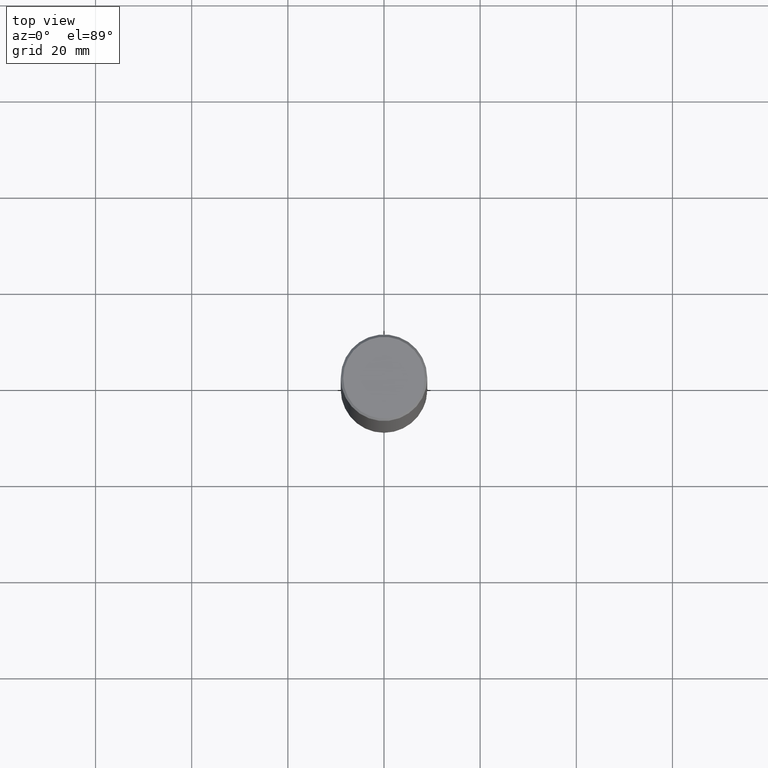
[diagram: clean part render]
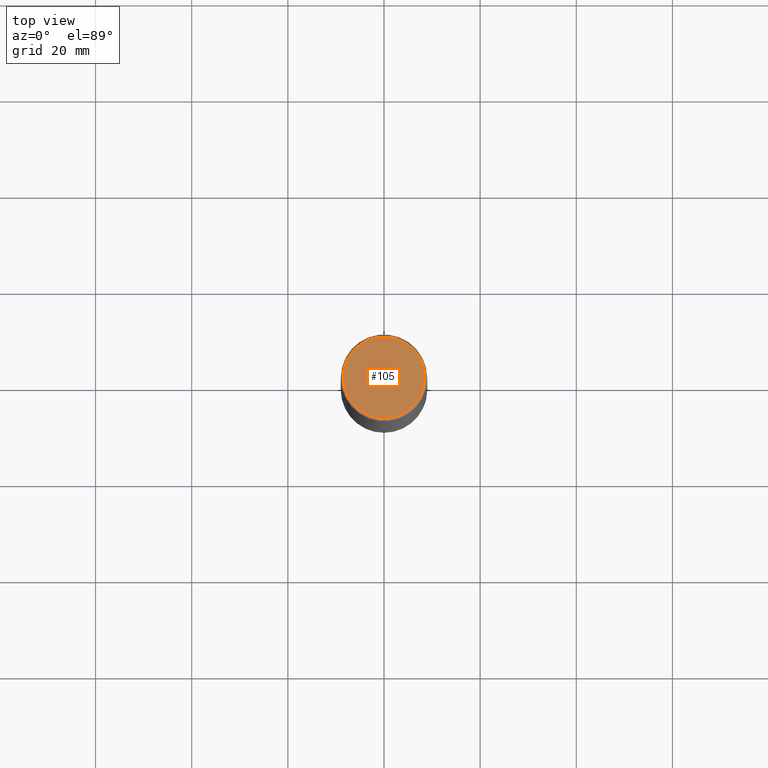
[diagram: same view with one face highlighted and labeled with its STEP entity id]
A machine part, top view. The second image highlights one B-rep face of the part: STEP entity #105.
In plain terms, the highlighted planar face has unit normal (0, -0, -1).
Its self-contained STEP definition (entity closure, byte-faithful):
#16 = CIRCLE ( 'NONE', #220, 0.3343500000000000916 ) ;
#30 = DIRECTION ( 'NONE',  ( 2.438088387897960049E-29, -3.491481338843145188E-15, -1.000000000000000000 ) ) ;
#53 = FACE_OUTER_BOUND ( 'NONE', #394, .T. ) ;
#54 = DIRECTION ( 'NONE',  ( -2.445468806185136597E-29, 3.491481338843145583E-15, 1.000000000000000000 ) ) ;
#93 = DIRECTION ( 'NONE',  ( 1.000000000000000000, -6.982962677686267499E-15, 4.875777752381876907E-29 ) ) ;
#96 = DIRECTION ( 'NONE',  ( -2.445468806185136597E-29, 3.491481338843145583E-15, 1.000000000000000000 ) ) ;
#105 = ADVANCED_FACE ( 'NONE', ( #53 ), #189, .F. ) ;
#118 = CIRCLE ( 'NONE', #358, 0.3343500000000000916 ) ;
#121 = CARTESIAN_POINT ( 'NONE',  ( 3.235939384439181382E-45, -4.620063828179386567E-31, -1.323238871931127589E-16 ) ) ;
#123 = CARTESIAN_POINT ( 'NONE',  ( 0.3343500000000000916, -2.397327298921059104E-15, -1.323238871930961928E-16 ) ) ;
#155 = DIRECTION ( 'NONE',  ( 1.000000000000000000, -6.982962677686267499E-15, 4.875777752381876907E-29 ) ) ;
#159 = DIRECTION ( 'NONE',  ( -1.000000000000000000, 6.982962677686265922E-15, -4.876176775795935793E-29 ) ) ;
#162 = VERTEX_POINT ( 'NONE', #123 ) ;
#189 = PLANE ( 'NONE',  #227 ) ;
#198 = EDGE_CURVE ( 'NONE', #162, #213, #118, .T. ) ;
#211 = CARTESIAN_POINT ( 'NONE',  ( 3.235939384439181382E-45, -4.620063828179386567E-31, -1.323238871931127589E-16 ) ) ;
#213 = VERTEX_POINT ( 'NONE', #370 ) ;
#220 = AXIS2_PLACEMENT_3D ( 'NONE', #211, #54, #93 ) ;
#227 = AXIS2_PLACEMENT_3D ( 'NONE', #410, #30, #159 ) ;
#285 = ORIENTED_EDGE ( 'NONE', *, *, #369, .T. ) ;
#329 = ORIENTED_EDGE ( 'NONE', *, *, #198, .T. ) ;
#358 = AXIS2_PLACEMENT_3D ( 'NONE', #121, #96, #155 ) ;
#369 = EDGE_CURVE ( 'NONE', #213, #162, #16, .T. ) ;
#370 = CARTESIAN_POINT ( 'NONE',  ( -0.3343500000000000916, 2.369668384672834141E-15, -1.323238871931292017E-16 ) ) ;
#394 = EDGE_LOOP ( 'NONE', ( #285, #329 ) ) ;
#410 = CARTESIAN_POINT ( 'NONE',  ( 2.334753571284403675E-15, 0.3343500000000000916, -1.233538729238762396E-15 ) ) ;